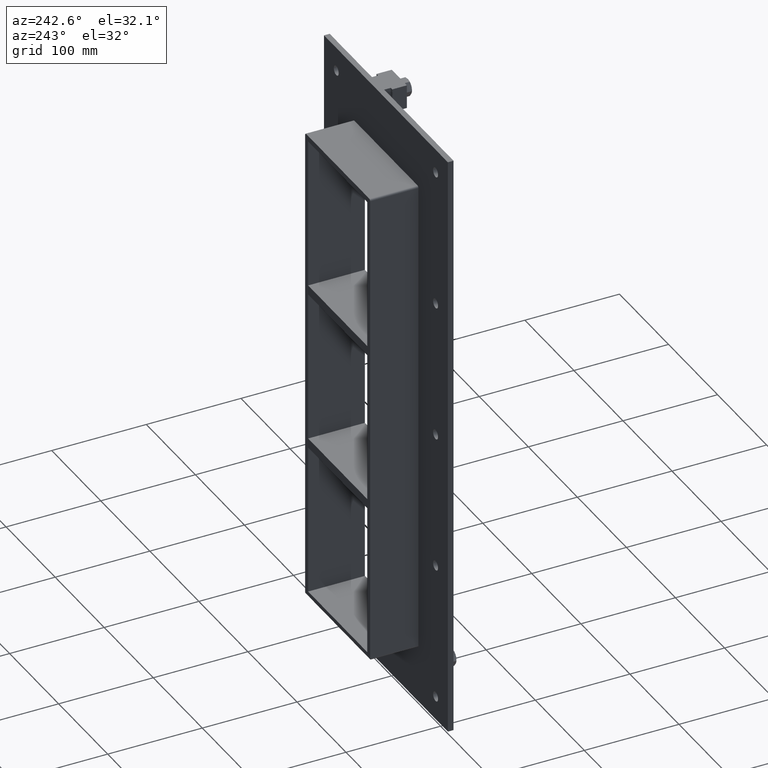
[diagram: clean part render]
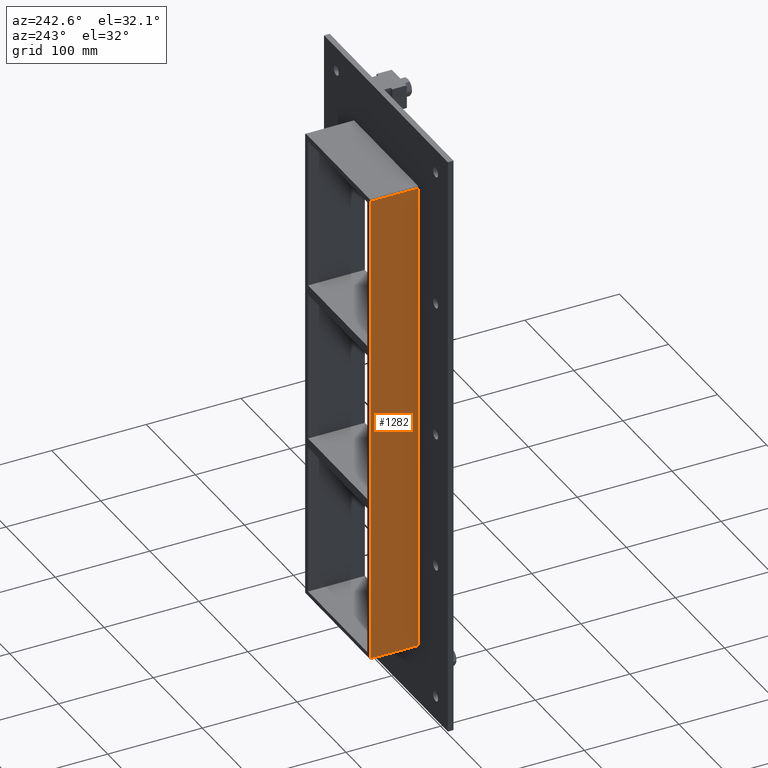
[diagram: same view with one face highlighted and labeled with its STEP entity id]
A machine part, auxiliary view. The second image highlights one B-rep face of the part: STEP entity #1282.
In plain terms, the highlighted planar face has unit normal (-1, 0, 0).
Its self-contained STEP definition (entity closure, byte-faithful):
#714=CARTESIAN_POINT('',(-66.25,6.000000000000001,253.25000000000003));
#715=VERTEX_POINT('',#714);
#725=CARTESIAN_POINT('',(-66.25,6.000000000000001,-253.25000000000003));
#726=VERTEX_POINT('',#725);
#727=CARTESIAN_POINT('',(-66.25,6.000000000000001,-253.25000000000003));
#728=DIRECTION('',(0.0,0.0,1.0));
#729=VECTOR('',#728,506.50000000000006);
#730=LINE('',#727,#729);
#731=EDGE_CURVE('',#726,#715,#730,.T.);
#1191=CARTESIAN_POINT('',(-66.25,57.0,-253.25000000000003));
#1192=VERTEX_POINT('',#1191);
#1193=CARTESIAN_POINT('',(-66.25,6.000000000000001,-253.25000000000003));
#1194=DIRECTION('',(0.0,1.0,0.0));
#1195=VECTOR('',#1194,51.0);
#1196=LINE('',#1193,#1195);
#1197=EDGE_CURVE('',#726,#1192,#1196,.T.);
#1259=CARTESIAN_POINT('',(-66.25,0.0,-255.25000000000003));
#1260=DIRECTION('',(-1.0,0.0,0.0));
#1261=DIRECTION('',(0.0,0.0,1.0));
#1262=AXIS2_PLACEMENT_3D('',#1259,#1260,#1261);
#1263=PLANE('',#1262);
#1264=ORIENTED_EDGE('',*,*,#731,.T.);
#1265=CARTESIAN_POINT('',(-66.25,57.0,253.25000000000006));
#1266=VERTEX_POINT('',#1265);
#1267=CARTESIAN_POINT('',(-66.25,57.0,253.25000000000003));
#1268=DIRECTION('',(0.0,-1.0,0.0));
#1269=VECTOR('',#1268,51.0);
#1270=LINE('',#1267,#1269);
#1271=EDGE_CURVE('',#1266,#715,#1270,.T.);
#1272=ORIENTED_EDGE('',*,*,#1271,.F.);
#1273=CARTESIAN_POINT('',(-66.25,57.0,-253.25000000000003));
#1274=DIRECTION('',(0.0,0.0,1.0));
#1275=VECTOR('',#1274,506.50000000000011);
#1276=LINE('',#1273,#1275);
#1277=EDGE_CURVE('',#1192,#1266,#1276,.T.);
#1278=ORIENTED_EDGE('',*,*,#1277,.F.);
#1279=ORIENTED_EDGE('',*,*,#1197,.F.);
#1280=EDGE_LOOP('',(#1264,#1272,#1278,#1279));
#1281=FACE_OUTER_BOUND('',#1280,.T.);
#1282=ADVANCED_FACE('',(#1281),#1263,.T.);